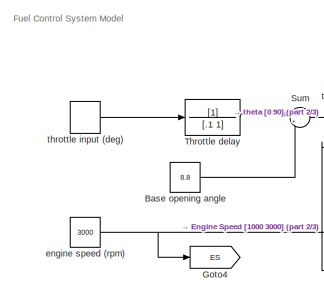
[diagram: root canvas - part 1/3, top left region]
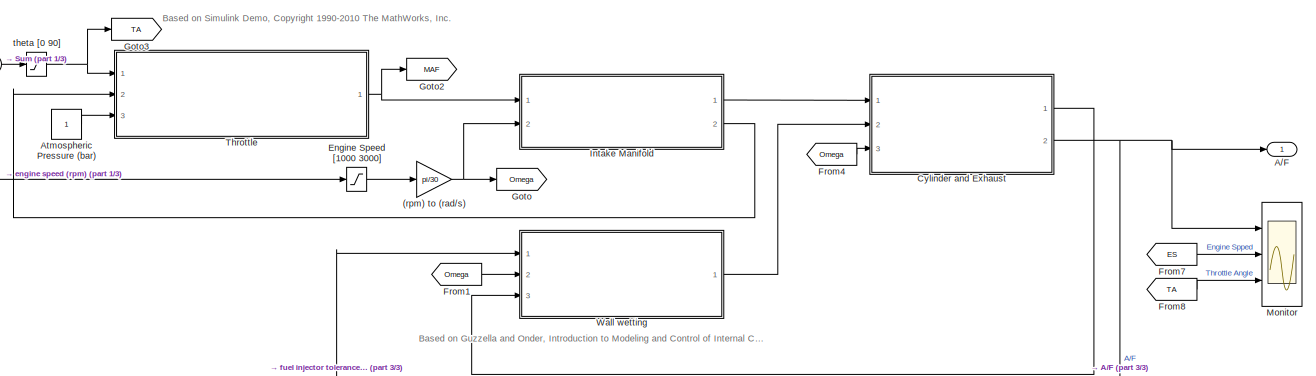
[diagram: root canvas - part 2/3, full width, middle band]
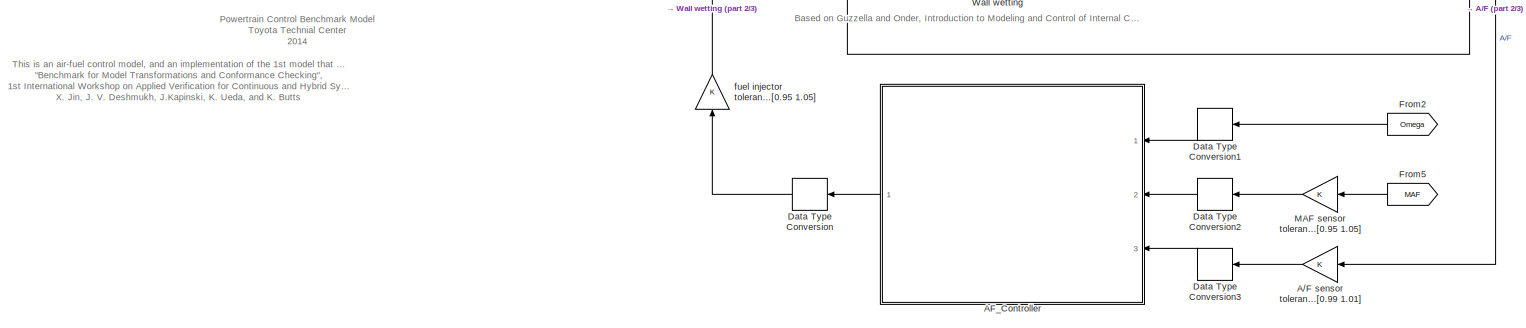
[diagram: root canvas - part 3/3, full width, bottom band]
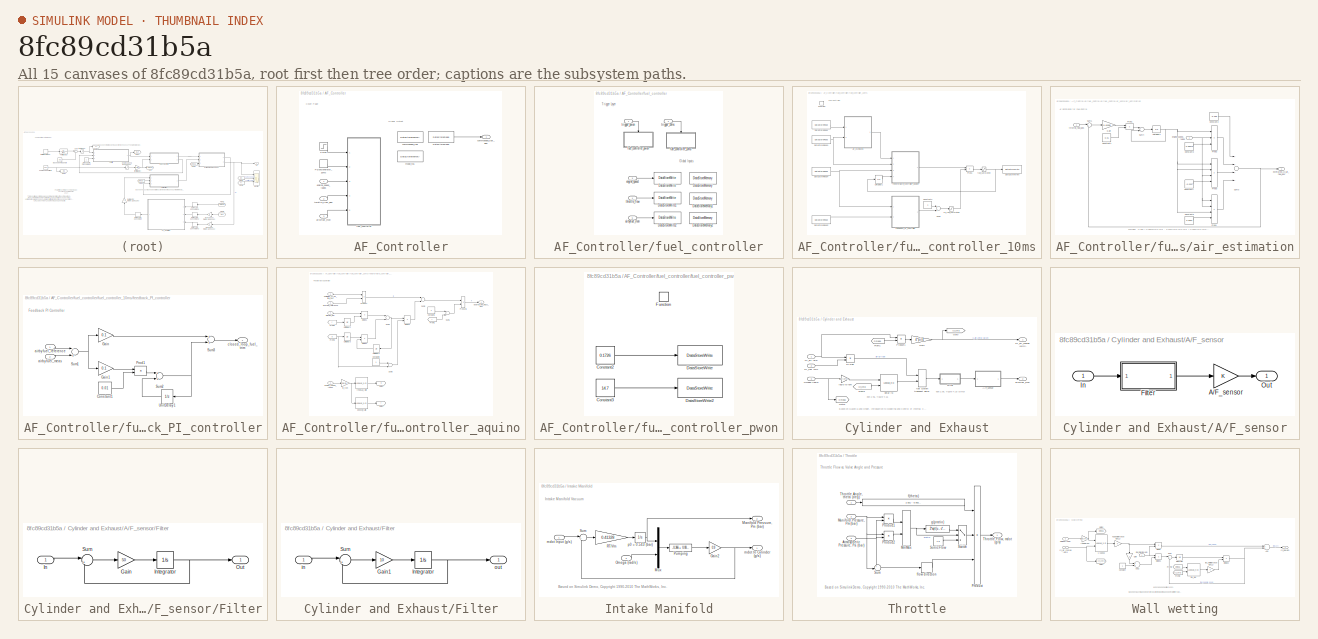
[diagram: thumbnail index - all 15 canvases of the model, root first then tree order]
MODEL slx_8fc89cd31b5a
KIND model
CONFIG AbsTol = 1e-6
CONFIG EnableMultiTasking = off
CONFIG FixedStep = .00005
CONFIG MaxStep = auto
CONFIG MinStep = auto
CONFIG RelTol = 1e-6
CONFIG SampleTimeConstraint = Unconstrained
CONFIG Solver = ode15s
CONFIG SolverName = ode15s
CONFIG StartTime = 0.0
CONFIG StopTime = 50
BLOCK [Gain] (rpm) to (rad//s)
  Gain = pi/30
  OutDataTypeStr = Inherit: Inherit via internal rule
  ParamDataTypeStr = Inherit: Inherit via internal rule
  SaturateOnIntegerOverflow = off
BLOCK [Outport] A//F
  IconDisplay = Port number
BLOCK [Gain] A//F sensor tolerance [0.99 1.01]
  OutDataTypeStr = Inherit: Inherit via internal rule
  ParamDataTypeStr = Inherit: Inherit via internal rule
  SaturateOnIntegerOverflow = off
BLOCK [SubSystem] AF_Controller
  Ports = [3, 1]
  RequestExecContextInheritance = off
  TreatAsAtomicUnit = on
BLOCK [DataStoreRead] AF_Controller/DataStoreRead
  AttributesFormatString = Priority = %<Priority>
  DataStoreName = commanded_fuel
  Ports = [0, 1]
  Priority = 2
BLOCK [DiscretePulseGenerator] AF_Controller/PulseGenerator_10ms
  Period = 0.01
  PhaseDelay = 0.01
  Ports = [0, 1]
  PulseType = Time based
  PulseWidth = 50
BLOCK [Step] AF_Controller/Pwon
  SampleTime = 0
  Time = 0.001
BLOCK [Inport] AF_Controller/airbyfuel_mon
  IconDisplay = Port number
  Port = 3
  SamplingMode = Sample based
  SignalType = real
BLOCK [DataStoreMemory] AF_Controller/commanded_fuel
  AttributesFormatString = commanded_fuel
  DataStoreName = commanded_fuel
  InitialValue = 0.1726
  OutDataTypeStr = single
  ShowAdditionalParam = off
  SignalType = real
BLOCK [Outport] AF_Controller/commanded_fuel_gps
  IconDisplay = Port number
  SamplingMode = Sample based
  SignalType = real
BLOCK [Inport] AF_Controller/engine_speed_radps
  IconDisplay = Port number
  SamplingMode = Sample based
  SignalType = real
BLOCK [SubSystem] AF_Controller/fuel_controller
  AttributesFormatString = Priority = %<Priority>
  Ports = [5]
  Priority = 1
  RequestExecContextInheritance = off
  TreatAsAtomicUnit = on
BLOCK [DataStoreMemory] AF_Controller/fuel_controller/DataStoreMemory
  AttributesFormatString = engine speed
  DataStoreName = engine_speed
  OutDataTypeStr = single
  ShowAdditionalParam = off
  SignalType = real
BLOCK [DataStoreMemory] AF_Controller/fuel_controller/DataStoreMemory1
  AttributesFormatString = throttle flow
  DataStoreName = throttle_flow
  OutDataTypeStr = single
  ShowAdditionalParam = off
  SignalType = real
BLOCK [DataStoreMemory] AF_Controller/fuel_controller/DataStoreMemory2
  AttributesFormatString = lambda_meas
  DataStoreName = airbyfuel_meas
  OutDataTypeStr = single
  ShowAdditionalParam = off
  SignalType = real
BLOCK [DataStoreWrite] AF_Controller/fuel_controller/DataStoreWrite
  AttributesFormatString = Priority = %<Priority>
  DataStoreName = engine_speed
  Ports = [1]
  Priority = 1
BLOCK [DataStoreWrite] AF_Controller/fuel_controller/DataStoreWrite1
  AttributesFormatString = Priority = %<Priority>
  DataStoreName = throttle_flow
  Ports = [1]
  Priority = 1
BLOCK [DataStoreWrite] AF_Controller/fuel_controller/DataStoreWrite2
  AttributesFormatString = Priority = %<Priority>
  DataStoreName = airbyfuel_meas
  Ports = [1]
  Priority = 1
BLOCK [Inport] AF_Controller/fuel_controller/airbyfuel_mon
  IconDisplay = Port number
  Port = 5
  SamplingMode = Sample based
  SignalType = real
BLOCK [Inport] AF_Controller/fuel_controller/engine_speed
  IconDisplay = Port number
  Port = 3
  SamplingMode = Sample based
  SignalType = real
BLOCK [SubSystem] AF_Controller/fuel_controller/fuel_controller_10ms
  AttributesFormatString = Priority = %<Priority>
  Ports = [0, 0, 0, 1]
  Priority = 20
  RequestExecContextInheritance = off
  TreatAsAtomicUnit = on
BLOCK [Constant] AF_Controller/fuel_controller/fuel_controller_10ms/Constant2
  OutDataTypeStr = single
BLOCK [DataStoreRead] AF_Controller/fuel_controller/fuel_controller_10ms/DataStoreRead
  DataStoreName = throttle_flow
  Ports = [0, 1]
BLOCK [DataStoreRead] AF_Controller/fuel_controller/fuel_controller_10ms/DataStoreRead1
  DataStoreName = engine_speed
  Ports = [0, 1]
BLOCK [DataStoreRead] AF_Controller/fuel_controller/fuel_controller_10ms/DataStoreRead2
  DataStoreName = airbyfuel_meas
  Ports = [0, 1]
BLOCK [DataStoreRead] AF_Controller/fuel_controller/fuel_controller_10ms/DataStoreRead4
  DataStoreName = airbyfuel_ref
  Ports = [0, 1]
BLOCK [DataStoreWrite] AF_Controller/fuel_controller/fuel_controller_10ms/DataStoreWrite
  DataStoreName = commanded_fuel
  Ports = [1]
BLOCK [TriggerPort] AF_Controller/fuel_controller/fuel_controller_10ms/Function
  Ports = []
  StatesWhenEnabling = held
  VariantControl = (inherit)
BLOCK [Product] AF_Controller/fuel_controller/fuel_controller_10ms/Prod1
  InputSameDT = off
  OutDataTypeStr = Inherit: Inherit via back propagation
  Ports = [2, 1]
  RndMeth = Simplest
  SaturateOnIntegerOverflow = off
BLOCK [Sum] AF_Controller/fuel_controller/fuel_controller_10ms/Sum1
  OutDataTypeStr = Inherit: Inherit via back propagation
  Ports = [2, 1]
  RndMeth = Simplest
  SaturateOnIntegerOverflow = off
BLOCK [UnitDelay] AF_Controller/fuel_controller/fuel_controller_10ms/UnitDelay1
  AttributesFormatString = Initial Value = 0
  HasFrameUpgradeWarning = on
  SampleTime = -1
  UserDataPersistent = on
BLOCK [SubSystem] AF_Controller/fuel_controller/fuel_controller_10ms/air_estimation
  Ports = [2, 1]
  RequestExecContextInheritance = off
  TreatAsAtomicUnit = on
BLOCK [Constant] AF_Controller/fuel_controller/fuel_controller_10ms/air_estimation/Constant1
  AttributesFormatString = Sample Time (s)
  OutDataTypeStr = single
  SampleTime = -1
  UserDataPersistent = on
  Value = 0.01
BLOCK [Constant] AF_Controller/fuel_controller/fuel_controller_10ms/air_estimation/Constant2
  OutDataTypeStr = single
  SampleTime = -1
  UserDataPersistent = on
  Value = -0.366
BLOCK [Constant] AF_Controller/fuel_controller/fuel_controller_10ms/air_estimation/Constant3
  OutDataTypeStr = single
  SampleTime = -1
  UserDataPersistent = on
  Value = 0.08979
BLOCK [Constant] AF_Controller/fuel_controller/fuel_controller_10ms/air_estimation/Constant4
  OutDataTypeStr = single
  SampleTime = -1
  UserDataPersistent = on
  Value = -0.0337
BLOCK [Constant] AF_Controller/fuel_controller/fuel_controller_10ms/air_estimation/Constant5
  OutDataTypeStr = single
  SampleTime = -1
  UserDataPersistent = on
  Value = 0.0001
BLOCK [Gain] AF_Controller/fuel_controller/fuel_controller_10ms/air_estimation/Gain
  AttributesFormatString = RT/Vm
  Gain = 0.41328
  OutDataTypeStr = Inherit: Inherit via back propagation
  ParamDataTypeStr = single
  RndMeth = Simplest
  UserDataPersistent = on
BLOCK [Product] AF_Controller/fuel_controller/fuel_controller_10ms/air_estimation/Prod1
  InputSameDT = off
  OutDataTypeStr = Inherit: Inherit via back propagation
  Ports = [2, 1]
  RndMeth = Simplest
  SaturateOnIntegerOverflow = off
BLOCK [Product] AF_Controller/fuel_controller/fuel_controller_10ms/air_estimation/Prod2
  InputSameDT = off
  Inputs = 3
  OutDataTypeStr = Inherit: Inherit via back propagation
  Ports = [3, 1]
  RndMeth = Simplest
  SaturateOnIntegerOverflow = off
BLOCK [Product] AF_Controller/fuel_controller/fuel_controller_10ms/air_estimation/Prod3
  InputSameDT = off
  Inputs = 4
  OutDataTypeStr = Inherit: Inherit via back propagation
  Ports = [4, 1]
  RndMeth = Simplest
  SaturateOnIntegerOverflow = off
BLOCK [Product] AF_Controller/fuel_controller/fuel_controller_10ms/air_estimation/Prod4
  InputSameDT = off
  Inputs = 4
  OutDataTypeStr = Inherit: Inherit via back propagation
  Ports = [4, 1]
  RndMeth = Simplest
  SaturateOnIntegerOverflow = off
BLOCK [Sum] AF_Controller/fuel_controller/fuel_controller_10ms/air_estimation/Sum1
  IconShape = round
  Inputs = |+-
  OutDataTypeStr = Inherit: Inherit via back propagation
  Ports = [2, 1]
  RndMeth = Simplest
  SaturateOnIntegerOverflow = off
BLOCK [Sum] AF_Controller/fuel_controller/fuel_controller_10ms/air_estimation/Sum3
  Inputs = ++++
  OutDataTypeStr = Inherit: Inherit via back propagation
  Ports = [4, 1]
  RndMeth = Simplest
  SaturateOnIntegerOverflow = off
BLOCK [Sum] AF_Controller/fuel_controller/fuel_controller_10ms/air_estimation/Sum4
  OutDataTypeStr = Inherit: Inherit via back propagation
  Ports = [2, 1]
  RndMeth = Simplest
  SaturateOnIntegerOverflow = off
BLOCK [UnitDelay] AF_Controller/fuel_controller/fuel_controller_10ms/air_estimation/UnitDelay1
  AttributesFormatString = p0 = %<InitialCondition> (bar)
  HasFrameUpgradeWarning = on
  InitialCondition = 0.825
  SampleTime = -1
  UserDataPersistent = on
BLOCK [Inport] AF_Controller/fuel_controller/fuel_controller_10ms/air_estimation/engine_speed_radps
  IconDisplay = Port number
  Port = 2
  SamplingMode = Sample based
  SignalType = real
BLOCK [Outport] AF_Controller/fuel_controller/fuel_controller_10ms/air_estimation/estimated_cyl_air_flow_gps
  IconDisplay = Port number
  SamplingMode = Sample based
  SignalType = real
BLOCK [Inport] AF_Controller/fuel_controller/fuel_controller_10ms/air_estimation/throttle_flow_gps
  IconDisplay = Port number
  SamplingMode = Sample based
  SignalType = real
BLOCK [Saturate] AF_Controller/fuel_controller/fuel_controller_10ms/fb_fuel_saturation
  AttributesFormatString = y >= 0
  InputPortMap = u0
  LowerLimit = 0
  Ports = [1, 1]
  RndMeth = Round
  UpperLimit = inf
BLOCK [SubSystem] AF_Controller/fuel_controller/fuel_controller_10ms/feedback_PI_controller
  Ports = [2, 1]
  RequestExecContextInheritance = off
  TreatAsAtomicUnit = on
BLOCK [Constant] AF_Controller/fuel_controller/fuel_controller_10ms/feedback_PI_controller/Constant1
  AttributesFormatString = Sample Time [s]
  OutDataTypeStr = single
  SampleTime = -1
  UserDataPersistent = on
  Value = 0.01
BLOCK [Gain] AF_Controller/fuel_controller/fuel_controller_10ms/feedback_PI_controller/Gain
  AttributesFormatString = Proportional Gain
  Gain = 0.1
  OutDataTypeStr = Inherit: Inherit via back propagation
  ParamDataTypeStr = single
  RndMeth = Simplest
  UserDataPersistent = on
BLOCK [Gain] AF_Controller/fuel_controller/fuel_controller_10ms/feedback_PI_controller/Gain1
  AttributesFormatString = Integral Gain
  Gain = 0.1
  OutDataTypeStr = Inherit: Inherit via back propagation
  ParamDataTypeStr = single
  RndMeth = Simplest
  UserDataPersistent = on
BLOCK [Product] AF_Controller/fuel_controller/fuel_controller_10ms/feedback_PI_controller/Prod1
  InputSameDT = off
  OutDataTypeStr = Inherit: Inherit via back propagation
  Ports = [2, 1]
  RndMeth = Simplest
  SaturateOnIntegerOverflow = off
BLOCK [Sum] AF_Controller/fuel_controller/fuel_controller_10ms/feedback_PI_controller/Sum1
  Inputs = -+
  OutDataTypeStr = Inherit: Inherit via back propagation
  Ports = [2, 1]
  RndMeth = Simplest
  SaturateOnIntegerOverflow = off
BLOCK [Sum] AF_Controller/fuel_controller/fuel_controller_10ms/feedback_PI_controller/Sum2
  OutDataTypeStr = Inherit: Inherit via back propagation
  Ports = [2, 1]
  RndMeth = Simplest
  SaturateOnIntegerOverflow = off
BLOCK [Sum] AF_Controller/fuel_controller/fuel_controller_10ms/feedback_PI_controller/Sum3
  OutDataTypeStr = Inherit: Inherit via back propagation
  Ports = [2, 1]
  RndMeth = Simplest
  SaturateOnIntegerOverflow = off
BLOCK [UnitDelay] AF_Controller/fuel_controller/fuel_controller_10ms/feedback_PI_controller/UnitDelay1
  AttributesFormatString = Initial Value = 0
  HasFrameUpgradeWarning = on
  SampleTime = -1
  UserDataPersistent = on
BLOCK [Inport] AF_Controller/fuel_controller/fuel_controller_10ms/feedback_PI_controller/airbyfuel_meas
  IconDisplay = Port number
  Port = 2
  SamplingMode = Sample based
  SignalType = real
BLOCK [Inport] AF_Controller/fuel_controller/fuel_controller_10ms/feedback_PI_controller/airbyfuel_reference
  IconDisplay = Port number
  SamplingMode = Sample based
  SignalType = real
BLOCK [Outport] AF_Controller/fuel_controller/fuel_controller_10ms/feedback_PI_controller/closed_loop_fuel_trim
  IconDisplay = Port number
  SamplingMode = Sample based
  SignalType = real
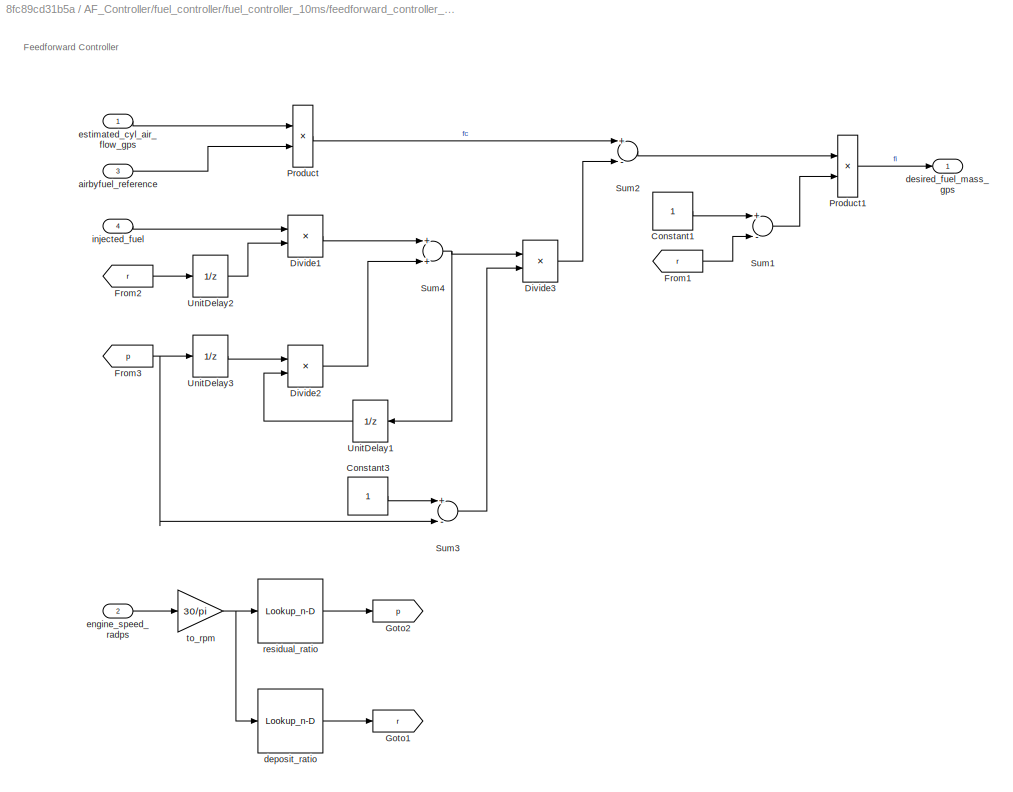
BLOCK [SubSystem] AF_Controller/fuel_controller/fuel_controller_10ms/feedforward_controller_aquino
  Ports = [4, 1]
  RequestExecContextInheritance = off
  TreatAsAtomicUnit = on
BLOCK [Constant] AF_Controller/fuel_controller/fuel_controller_10ms/feedforward_controller_aquino/Constant1
  OutDataTypeStr = single
  SampleTime = -1
  UserDataPersistent = on
BLOCK [Constant] AF_Controller/fuel_controller/fuel_controller_10ms/feedforward_controller_aquino/Constant3
  OutDataTypeStr = single
  SampleTime = -1
  UserDataPersistent = on
BLOCK [Product] AF_Controller/fuel_controller/fuel_controller_10ms/feedforward_controller_aquino/Divide1
  InputSameDT = off
  Inputs = **
  OutDataTypeStr = Inherit: Inherit via internal rule
  Ports = [2, 1]
  RndMeth = Floor
  SaturateOnIntegerOverflow = off
BLOCK [Product] AF_Controller/fuel_controller/fuel_controller_10ms/feedforward_controller_aquino/Divide2
  InputSameDT = off
  Inputs = **
  OutDataTypeStr = Inherit: Inherit via internal rule
  Ports = [2, 1]
  RndMeth = Floor
  SaturateOnIntegerOverflow = off
BLOCK [Product] AF_Controller/fuel_controller/fuel_controller_10ms/feedforward_controller_aquino/Divide3
  InputSameDT = off
  Inputs = **
  OutDataTypeStr = Inherit: Inherit via internal rule
  Ports = [2, 1]
  RndMeth = Floor
  SaturateOnIntegerOverflow = off
BLOCK [From] AF_Controller/fuel_controller/fuel_controller_10ms/feedforward_controller_aquino/From1
  GotoTag = r
BLOCK [From] AF_Controller/fuel_controller/fuel_controller_10ms/feedforward_controller_aquino/From2
  GotoTag = r
BLOCK [From] AF_Controller/fuel_controller/fuel_controller_10ms/feedforward_controller_aquino/From3
  GotoTag = p
BLOCK [Goto] AF_Controller/fuel_controller/fuel_controller_10ms/feedforward_controller_aquino/Goto1
  GotoTag = r
BLOCK [Goto] AF_Controller/fuel_controller/fuel_controller_10ms/feedforward_controller_aquino/Goto2
  GotoTag = p
BLOCK [Product] AF_Controller/fuel_controller/fuel_controller_10ms/feedforward_controller_aquino/Product
  InputSameDT = off
  Inputs = */
  Ports = [2, 1]
  RndMeth = Simplest
BLOCK [Product] AF_Controller/fuel_controller/fuel_controller_10ms/feedforward_controller_aquino/Product1
  InputSameDT = off
  Inputs = */
  Ports = [2, 1]
  RndMeth = Simplest
BLOCK [Sum] AF_Controller/fuel_controller/fuel_controller_10ms/feedforward_controller_aquino/Sum1
  Inputs = +-
  OutDataTypeStr = Inherit: Inherit via back propagation
  Ports = [2, 1]
  RndMeth = Simplest
  SaturateOnIntegerOverflow = off
BLOCK [Sum] AF_Controller/fuel_controller/fuel_controller_10ms/feedforward_controller_aquino/Sum2
  Inputs = +-
  OutDataTypeStr = Inherit: Inherit via back propagation
  Ports = [2, 1]
  RndMeth = Simplest
  SaturateOnIntegerOverflow = off
BLOCK [Sum] AF_Controller/fuel_controller/fuel_controller_10ms/feedforward_controller_aquino/Sum3
  Inputs = +-
  OutDataTypeStr = Inherit: Inherit via back propagation
  Ports = [2, 1]
  RndMeth = Simplest
  SaturateOnIntegerOverflow = off
BLOCK [Sum] AF_Controller/fuel_controller/fuel_controller_10ms/feedforward_controller_aquino/Sum4
  OutDataTypeStr = Inherit: Inherit via back propagation
  Ports = [2, 1]
  RndMeth = Simplest
  SaturateOnIntegerOverflow = off
BLOCK [UnitDelay] AF_Controller/fuel_controller/fuel_controller_10ms/feedforward_controller_aquino/UnitDelay1
  AttributesFormatString = Initial Value = 0
  HasFrameUpgradeWarning = on
  SampleTime = -1
  UserDataPersistent = on
BLOCK [UnitDelay] AF_Controller/fuel_controller/fuel_controller_10ms/feedforward_controller_aquino/UnitDelay2
  AttributesFormatString = Initial Value = 0
  HasFrameUpgradeWarning = on
  SampleTime = -1
  UserDataPersistent = on
BLOCK [UnitDelay] AF_Controller/fuel_controller/fuel_controller_10ms/feedforward_controller_aquino/UnitDelay3
  AttributesFormatString = Initial Value = 0
  HasFrameUpgradeWarning = on
  SampleTime = -1
  UserDataPersistent = on
BLOCK [Inport] AF_Controller/fuel_controller/fuel_controller_10ms/feedforward_controller_aquino/airbyfuel_reference
  IconDisplay = Port number
  Port = 3
  SamplingMode = Sample based
  SignalType = real
BLOCK [Lookup_n-D] AF_Controller/fuel_controller/fuel_controller_10ms/feedforward_controller_aquino/deposit_ratio
  BreakpointsForDimension1 = [1000, 2000, 3000]
  ExtrapMethod = Clip
  InternalRulePriority = Speed
  NumberOfTableDimensions = 1
  Ports = [1, 1]
  RndMeth = Simplest
  Table = [0.4, 0.65, 0.5]
BLOCK [Outport] AF_Controller/fuel_controller/fuel_controller_10ms/feedforward_controller_aquino/desired_fuel_mass_gps
  IconDisplay = Port number
  SamplingMode = Sample based
  SignalType = real
BLOCK [Inport] AF_Controller/fuel_controller/fuel_controller_10ms/feedforward_controller_aquino/engine_speed_radps
  IconDisplay = Port number
  Port = 2
  SamplingMode = Sample based
  SignalType = real
BLOCK [Inport] AF_Controller/fuel_controller/fuel_controller_10ms/feedforward_controller_aquino/estimated_cyl_air_flow_gps
  IconDisplay = Port number
  SamplingMode = Sample based
  SignalType = real
BLOCK [Inport] AF_Controller/fuel_controller/fuel_controller_10ms/feedforward_controller_aquino/injected_fuel
  IconDisplay = Port number
  Port = 4
  SamplingMode = Sample based
  SignalType = real
BLOCK [Lookup_n-D] AF_Controller/fuel_controller/fuel_controller_10ms/feedforward_controller_aquino/residual_ratio
  BreakpointsForDimension1 = [1000, 2000, 3000]
  ExtrapMethod = Clip
  InternalRulePriority = Speed
  NumberOfTableDimensions = 1
  Ports = [1, 1]
  RndMeth = Simplest
  Table = [0.5, 0.95, 0.9]
BLOCK [Gain] AF_Controller/fuel_controller/fuel_controller_10ms/feedforward_controller_aquino/to_rpm
  Gain = 30/pi
  OutDataTypeStr = Inherit: Inherit via internal rule
  ParamDataTypeStr = Inherit: Inherit via internal rule
  SaturateOnIntegerOverflow = off
BLOCK [Saturate] AF_Controller/fuel_controller/fuel_controller_10ms/fuel_saturation
  AttributesFormatString = 0.1 <=\ncommanded_fuel\n<= 5.0
  InputPortMap = u0
  LowerLimit = 0.1
  Ports = [1, 1]
  RndMeth = Round
  UpperLimit = 5.0
BLOCK [SubSystem] AF_Controller/fuel_controller/fuel_controller_pwon
  AttributesFormatString = Priority = %<Priority>
  Ports = [0, 0, 0, 1]
  Priority = 10
  RequestExecContextInheritance = off
  TreatAsAtomicUnit = on
BLOCK [Constant] AF_Controller/fuel_controller/fuel_controller_pwon/Constant2
  OutDataTypeStr = single
  SampleTime = -1
  UserDataPersistent = on
  Value = 0.1726
BLOCK [Constant] AF_Controller/fuel_controller/fuel_controller_pwon/Constant3
  OutDataTypeStr = single
  SampleTime = -1
  UserDataPersistent = on
  Value = 14.7
BLOCK [DataStoreWrite] AF_Controller/fuel_controller/fuel_controller_pwon/DataStoreWrite
  DataStoreName = commanded_fuel
  Ports = [1]
BLOCK [DataStoreWrite] AF_Controller/fuel_controller/fuel_controller_pwon/DataStoreWrite2
  DataStoreName = airbyfuel_ref
  Ports = [1]
BLOCK [TriggerPort] AF_Controller/fuel_controller/fuel_controller_pwon/Function
  Ports = []
  StatesWhenEnabling = held
  VariantControl = (inherit)
BLOCK [Inport] AF_Controller/fuel_controller/throttle_flow
  IconDisplay = Port number
  Port = 4
  SamplingMode = Sample based
  SignalType = real
BLOCK [Inport] AF_Controller/fuel_controller/trigger_10ms
  IconDisplay = Port number
  Port = 2
  SamplingMode = Sample based
  SignalType = real
BLOCK [Inport] AF_Controller/fuel_controller/trigger_pwon
  IconDisplay = Port number
  SamplingMode = Sample based
  SignalType = real
BLOCK [DataStoreMemory] AF_Controller/mode_fb1
  AttributesFormatString = airbyfuel_reference
  DataStoreName = airbyfuel_ref
  InitialValue = 14.7
  OutDataTypeStr = single
  ShowAdditionalParam = off
  SignalType = real
BLOCK [Inport] AF_Controller/throttle_flow_gps
  IconDisplay = Port number
  Port = 2
  SamplingMode = Sample based
  SignalType = real
BLOCK [Constant] Atmospheric Pressure (bar)
BLOCK [Constant] Base opening angle
  Value = 8.8
BLOCK [SubSystem] Cylinder and Exhaust
  Ports = [3, 2]
  RequestExecContextInheritance = off
BLOCK [SubSystem] Cylinder and Exhaust/A//F_sensor
  Ports = [1, 1]
  RequestExecContextInheritance = off
BLOCK [Gain] Cylinder and Exhaust/A//F_sensor/A//F_sensor
  OutDataTypeStr = double
  ParamDataTypeStr = Inherit: Inherit via internal rule
  SaturateOnIntegerOverflow = off
BLOCK [SubSystem] Cylinder and Exhaust/A//F_sensor/Filter
  Ports = [1, 1]
  RequestExecContextInheritance = off
BLOCK [Gain] Cylinder and Exhaust/A//F_sensor/Filter/Gain
  Gain = 50
  OutDataTypeStr = Inherit: Inherit via internal rule
  ParamDataTypeStr = Inherit: Inherit via internal rule
  SaturateOnIntegerOverflow = off
BLOCK [Inport] Cylinder and Exhaust/A//F_sensor/Filter/In
  IconDisplay = Port number
BLOCK [Integrator] Cylinder and Exhaust/A//F_sensor/Filter/Integrator
  InitialCondition = 14.7
  Ports = [1, 1]
BLOCK [Outport] Cylinder and Exhaust/A//F_sensor/Filter/Out
  IconDisplay = Port number
BLOCK [Sum] Cylinder and Exhaust/A//F_sensor/Filter/Sum
  IconShape = round
  InputSameDT = off
  Inputs = |+-
  OutDataTypeStr = Inherit: Inherit via internal rule
  Ports = [2, 1]
  SaturateOnIntegerOverflow = off
BLOCK [Inport] Cylinder and Exhaust/A//F_sensor/In
  IconDisplay = Port number
BLOCK [Outport] Cylinder and Exhaust/A//F_sensor/Out
  IconDisplay = Port number
BLOCK [Product] Cylinder and Exhaust/Divide
  InputSameDT = off
  Inputs = */
  OutDataTypeStr = Inherit: Inherit via internal rule
  Ports = [2, 1]
  RndMeth = Floor
  SaturateOnIntegerOverflow = off
BLOCK [SubSystem] Cylinder and Exhaust/Filter
  Ports = [1, 1]
  RequestExecContextInheritance = off
BLOCK [Gain] Cylinder and Exhaust/Filter/Gain1
  Gain = 10
  OutDataTypeStr = Inherit: Inherit via internal rule
  ParamDataTypeStr = Inherit: Inherit via internal rule
  SaturateOnIntegerOverflow = off
BLOCK [Integrator] Cylinder and Exhaust/Filter/Integrator
  InitialCondition = 14.7
  Ports = [1, 1]
BLOCK [Sum] Cylinder and Exhaust/Filter/Sum
  IconShape = round
  InputSameDT = off
  Inputs = |+-
  OutDataTypeStr = Inherit: Inherit via internal rule
  Ports = [2, 1]
  SaturateOnIntegerOverflow = off
BLOCK [Inport] Cylinder and Exhaust/Filter/in
  IconDisplay = Port number
BLOCK [Outport] Cylinder and Exhaust/Filter/out
  IconDisplay = Port number
BLOCK [From] Cylinder and Exhaust/From1
  GotoTag = Omega
BLOCK [From] Cylinder and Exhaust/From3
  GotoTag = cyl_chrg
BLOCK [Gain] Cylinder and Exhaust/Gain
  Gain = 4*pi/4
  OutDataTypeStr = Inherit: Inherit via internal rule
  ParamDataTypeStr = Inherit: Inherit via internal rule
  SaturateOnIntegerOverflow = off
BLOCK [Goto] Cylinder and Exhaust/Goto
  GotoTag = cyl_chrg
BLOCK [Goto] Cylinder and Exhaust/Goto1
  GotoTag = Omega
BLOCK [Inport] Cylinder and Exhaust/Omega (rad//s)
  IconDisplay = Port number
  Port = 3
BLOCK [Product] Cylinder and Exhaust/Product1
  InputSameDT = off
  Inputs = */
  OutDataTypeStr = Inherit: Inherit via internal rule
  Ports = [2, 1]
  SaturateOnIntegerOverflow = off
BLOCK [Outport] Cylinder and Exhaust/airbyfuel_mon 
  IconDisplay = Port number
  Port = 2
BLOCK [Inport] Cylinder and Exhaust/cyl_air (g//s)
  IconDisplay = Port number
BLOCK [Outport] Cylinder and Exhaust/cyl_air_charge (g//cyl)
  IconDisplay = Port number
BLOCK [Inport] Cylinder and Exhaust/cyl_fuel (g//s)
  IconDisplay = Port number
  Port = 2
BLOCK [Lookup_n-D] Cylinder and Exhaust/delay (s)
  BreakpointsForDimension1 = [800,1000,1500,2000,3000]
  BreakpointsForDimension2 = [0.05,0.15,0.2,0.25]
  Ports = [2, 1]
  RndMeth = Simplest
  Table = reshape([0.8,0.6,0.4,0.3,0.2,0.4,0.3,0.2,0.2,0.2,0.3,0.25,0.2,0.2,0.2,0.25,0.2,0.2,0.2,0.2],5,4)
  UseLastTableValue = on
BLOCK [VariableTransportDelay] Cylinder and Exhaust/fuel system transport delay
  InitialOutput = 14.7
  MaximumDelay = 10
  MaximumPoints = 20480
  Ports = [2, 1]
  VariableDelayType = Variable transport delay
BLOCK [Gain] Cylinder and Exhaust/rad//s to rpm
  Gain = 60/(2*pi)
  OutDataTypeStr = Inherit: Inherit via internal rule
  ParamDataTypeStr = Inherit: Inherit via internal rule
  SaturateOnIntegerOverflow = off
BLOCK [DataTypeConversion] Data Type Conversion
  OutDataTypeStr = double
  RndMeth = Floor
  SaturateOnIntegerOverflow = off
BLOCK [DataTypeConversion] Data Type Conversion1
  OutDataTypeStr = single
  RndMeth = Floor
  SaturateOnIntegerOverflow = off
BLOCK [DataTypeConversion] Data Type Conversion2
  OutDataTypeStr = single
  RndMeth = Floor
  SaturateOnIntegerOverflow = off
BLOCK [DataTypeConversion] Data Type Conversion3
  OutDataTypeStr = single
  RndMeth = Floor
  SaturateOnIntegerOverflow = off
BLOCK [Saturate] Engine Speed [1000 3000]
  InputPortMap = u0
  LowerLimit = 1000
  Ports = [1, 1]
  UpperLimit = 3000
BLOCK [From] From1
  GotoTag = Omega
BLOCK [From] From2
  GotoTag = Omega
BLOCK [From] From4
  GotoTag = Omega
BLOCK [From] From5
  GotoTag = MAF
BLOCK [From] From7
  GotoTag = ES
BLOCK [From] From8
  GotoTag = TA
BLOCK [Goto] Goto
  GotoTag = Omega
BLOCK [Goto] Goto2
  GotoTag = MAF
BLOCK [Goto] Goto3
  GotoTag = TA
BLOCK [Goto] Goto4
  GotoTag = ES
BLOCK [SubSystem] Intake Manifold
  Ports = [2, 2]
  RequestExecContextInheritance = off
BLOCK [Gain] Intake Manifold/Gain2
  AttributesFormatString = pumping tolerance [0.9 1.1]
  Gain = 0.9
  OutDataTypeStr = Inherit: Inherit via back propagation
  ParamDataTypeStr = single
  RndMeth = Simplest
  UserDataPersistent = on
BLOCK [Outport] Intake Manifold/Manifold Pressure, Pm (bar)
  IconDisplay = Port number
  InitialOutput = 0
  Port = 2
BLOCK [Mux] Intake Manifold/Mux
  DisplayOption = bar
  Inputs = 2
  Ports = [2, 1]
BLOCK [Inport] Intake Manifold/Omega (rad//s)
  IconDisplay = Port number
  Port = 2
BLOCK [Fcn] Intake Manifold/Pumping
  Expr = -0.366 + 0.08979*u[1]*u[2] - 0.0337*u[2]*u[1]*u[1] + 0.0001*u[1]*u[2]*u[2]
BLOCK [Gain] Intake Manifold/RT//Vm
  Gain = 0.41328
BLOCK [Sum] Intake Manifold/Sum
  IconShape = round
  Inputs = |+-
  Ports = [2, 1]
BLOCK [Inport] Intake Manifold/mdot Input (g//s)
  IconDisplay = Port number
BLOCK [Outport] Intake Manifold/mdot to Cylinder (g//s)
  IconDisplay = Port number
  InitialOutput = 0
BLOCK [Integrator] Intake Manifold/p0 = 0.543 (bar)
  InitialCondition = 0.7705
  Ports = [1, 1]
BLOCK [Gain] MAF sensor tolerance [0.95 1.05]
  OutDataTypeStr = Inherit: Inherit via internal rule
  ParamDataTypeStr = Inherit: Inherit via internal rule
  SaturateOnIntegerOverflow = off
BLOCK [Scope] Monitor
  Floating = off
  NumInputPorts = 3
  Ports = [3]
  ScopeSpecificationString = C++SS(StrPVP('Location','[882, 814, 2107, 1438]'),StrPVP('Open','off'),StrPVP('ZoomMode','xonly'),MxPVP('AxesTitles',54,'struct(''axes1'',''%<SignalLabel>'',''axes2'',''%<SignalLabel>'',''axes3'',''%<SignalLabel>'')'),MxPVP('ScopeGraphics',57,'struct(''FigureColor'',''[0.501960784313725 0.501960784313725 0.501960784313725]'',''AxesColor'',''[0 0 0]'',''AxesTickColor'',''[1 1 1]'',''LineColors'',''...<+453ch>
BLOCK [Sum] Sum
  IconShape = round
  InputSameDT = off
  Inputs = |++
  OutDataTypeStr = Inherit: Inherit via internal rule
  Ports = [2, 1]
  SaturateOnIntegerOverflow = off
BLOCK [SubSystem] Throttle
  Ports = [3, 1]
  RequestExecContextInheritance = off
BLOCK [TransferFcn] Throttle delay
  Denominator = [.1 1]
BLOCK [Inport] Throttle/Atmospheric Pressure, Pa (bar) 
  IconDisplay = Port number
  Port = 3
BLOCK [Inport] Throttle/Manifold Pressure, Pm (bar)
  IconDisplay = Port number
  Port = 2
BLOCK [MinMax] Throttle/MinMax
  Inputs = 2
  Ports = [2, 1]
BLOCK [Product] Throttle/Product
  Inputs = 3
  Ports = [3, 1]
BLOCK [Product] Throttle/Product1
  Inputs = */
  Ports = [2, 1]
BLOCK [Product] Throttle/Product2
  Inputs = /*
  Ports = [2, 1]
BLOCK [Constant] Throttle/Sonic Flow 
  Value = 1.0
BLOCK [Sum] Throttle/Sum
  IconShape = round
  Inputs = +-|
  Ports = [2, 1]
BLOCK [Switch] Throttle/Switch
  Threshold = 0.5
BLOCK [Inport] Throttle/Throttle Angle, theta (deg)
  IconDisplay = Port number
BLOCK [Outport] Throttle/Throttle Flow, mdot (g//s)
  IconDisplay = Port number
  InitialOutput = 0
BLOCK [Fcn] Throttle/f(theta)
  Expr = 2.821 - 0.05231*u + 0.10299*u*u - 0.00063*u*u*u
BLOCK [Signum] Throttle/flow direction
BLOCK [Fcn] Throttle/g(pratio)
  Expr = 2*sqrt(u - u*u)
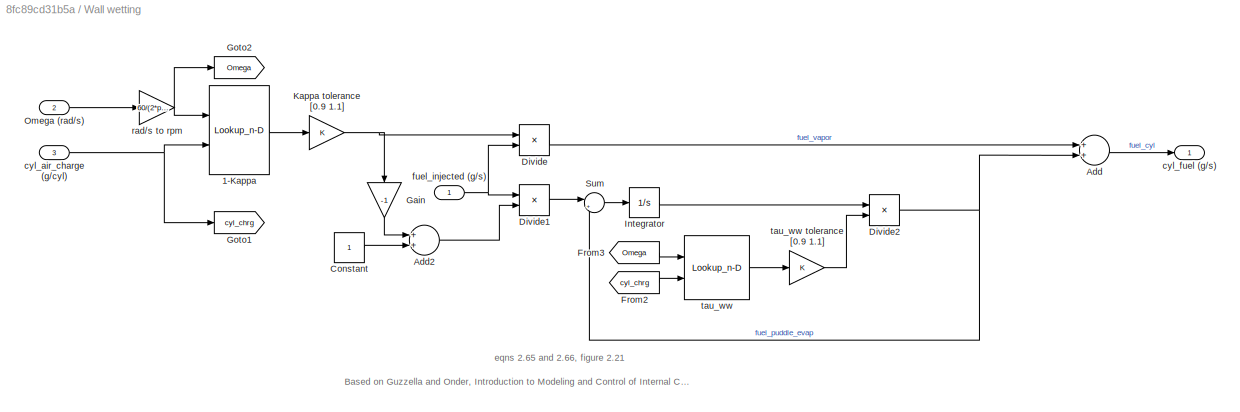
BLOCK [SubSystem] Wall wetting
  Ports = [3, 1]
  RequestExecContextInheritance = off
BLOCK [Lookup_n-D] Wall wetting/1-Kappa
  BreakpointsForDimension1 = [1000,1500,2000,2500,3000]
  BreakpointsForDimension2 = [.1,.2,.3,.4]
  Ports = [2, 1]
  RndMeth = Simplest
  Table = reshape([0.8,.7,.7,.8,.9,.7,.66,.65,.73,.85,.66,.66,.63,.66,.8,.6,.6,.6,.6,.7],5,4)
  UseLastTableValue = on
BLOCK [Sum] Wall wetting/Add
  InputSameDT = off
  OutDataTypeStr = Inherit: Inherit via internal rule
  Ports = [2, 1]
  SaturateOnIntegerOverflow = off
BLOCK [Sum] Wall wetting/Add2
  InputSameDT = off
  OutDataTypeStr = Inherit: Inherit via internal rule
  Ports = [2, 1]
  SaturateOnIntegerOverflow = off
BLOCK [Constant] Wall wetting/Constant
BLOCK [Product] Wall wetting/Divide
  InputSameDT = off
  Inputs = **
  OutDataTypeStr = Inherit: Inherit via internal rule
  Ports = [2, 1]
  RndMeth = Floor
  SaturateOnIntegerOverflow = off
BLOCK [Product] Wall wetting/Divide1
  InputSameDT = off
  Inputs = **
  OutDataTypeStr = Inherit: Inherit via internal rule
  Ports = [2, 1]
  RndMeth = Floor
  SaturateOnIntegerOverflow = off
BLOCK [Product] Wall wetting/Divide2
  InputSameDT = off
  Inputs = */
  OutDataTypeStr = Inherit: Inherit via internal rule
  Ports = [2, 1]
  RndMeth = Floor
  SaturateOnIntegerOverflow = off
BLOCK [From] Wall wetting/From2
  GotoTag = cyl_chrg
BLOCK [From] Wall wetting/From3
  GotoTag = Omega
BLOCK [Gain] Wall wetting/Gain
  Gain = -1
  OutDataTypeStr = Inherit: Inherit via internal rule
  ParamDataTypeStr = Inherit: Inherit via internal rule
  SaturateOnIntegerOverflow = off
BLOCK [Goto] Wall wetting/Goto1
  GotoTag = cyl_chrg
BLOCK [Goto] Wall wetting/Goto2
  GotoTag = Omega
BLOCK [Integrator] Wall wetting/Integrator
  InitialCondition = .0112
  Ports = [1, 1]
BLOCK [Gain] Wall wetting/Kappa tolerance [0.9 1.1]
  OutDataTypeStr = Inherit: Inherit via internal rule
  ParamDataTypeStr = Inherit: Inherit via internal rule
  SaturateOnIntegerOverflow = off
BLOCK [Inport] Wall wetting/Omega (rad//s)
  IconDisplay = Port number
  Port = 2
BLOCK [Sum] Wall wetting/Sum
  IconShape = round
  InputSameDT = off
  Inputs = |+-
  OutDataTypeStr = Inherit: Inherit via internal rule
  Ports = [2, 1]
  SaturateOnIntegerOverflow = off
BLOCK [Inport] Wall wetting/cyl_air_charge (g//cyl)
  IconDisplay = Port number
  Port = 3
BLOCK [Outport] Wall wetting/cyl_fuel (g//s)
  IconDisplay = Port number
BLOCK [Inport] Wall wetting/fuel_injected (g//s)
  IconDisplay = Port number
BLOCK [Gain] Wall wetting/rad//s to rpm
  Gain = 60/(2*pi)
  OutDataTypeStr = Inherit: Inherit via internal rule
  ParamDataTypeStr = Inherit: Inherit via internal rule
  SaturateOnIntegerOverflow = off
BLOCK [Lookup_n-D] Wall wetting/tau_ww
  BreakpointsForDimension1 = [1000,1500,2000,2500,3000]
  BreakpointsForDimension2 = [0.1,0.2,0.3,0.4]
  Ports = [2, 1]
  RndMeth = Simplest
  Table = reshape([.4,.3,.35,.3,.2,.22,.22,.4,.35,.5,.20,.22,.5,.4,.35,.35,.3,.45,.5,.4],5,4)
  UseLastTableValue = on
BLOCK [Gain] Wall wetting/tau_ww tolerance [0.9 1.1]
  OutDataTypeStr = Inherit: Inherit via internal rule
  ParamDataTypeStr = Inherit: Inherit via internal rule
  SaturateOnIntegerOverflow = off
BLOCK [Constant] engine speed (rpm)
  AttributesFormatString = %<Description>
  Description = [1000, 3000]
  Value = 3000
BLOCK [Gain] fuel injector tolerance [0.95 1.05]
  OutDataTypeStr = Inherit: Inherit via internal rule
  ParamDataTypeStr = Inherit: Inherit via internal rule
  SaturateOnIntegerOverflow = off
BLOCK [Saturate] theta [0 90]
  InputPortMap = u0
  LowerLimit = 0
  Ports = [1, 1]
  UpperLimit = 90
BLOCK [DiscretePulseGenerator] throttle input (deg)
  Amplitude = 81.2
  AttributesFormatString = %<Description>
  Description = [0, 81.2]
  Period = 10
  PhaseDelay = 3
  Ports = [0, 1]
  PulseType = Time based
  PulseWidth = 50
ANNOTATION (root): Based on Guzzella and Onder, Introduction to Modeling and Control of Internal Combustion Engine Systems
ANNOTATION (root): Based on Simulink Demo, <copyright redacted>
ANNOTATION (root): Fuel Control System Model
ANNOTATION (root): Powertrain Control Benchmark Model Toyota Technial Center 2014
ANNOTATION (root): This is an air-fuel control model, and an implementation of the 1st model that appears in "Benchmark for Model Transformations and Conformance Checking", 1st International Workshop on Applied Verification for Continuous and Hybrid Systems 2014, X. Jin, J. V. Deshmukh, J.Kapinski, K. Ueda, and K. Butts
ANNOTATION AF_Controller: Cover Page
ANNOTATION AF_Controller: Global Output
ANNOTATION AF_Controller/fuel_controller: Global Inputs
ANNOTATION AF_Controller/fuel_controller: Trigger Layer
ANNOTATION AF_Controller/fuel_controller/fuel_controller_10ms: Fuel Controller
ANNOTATION AF_Controller/fuel_controller/fuel_controller_10ms/air_estimation: Air Estimation for Fuel Control
ANNOTATION AF_Controller/fuel_controller/fuel_controller_10ms/air_estimation: Pumping: -0.366 + 0.08979*u[1]*u[2] - 0.0337*u[2]*u[1]*u[1] + 0.0001*u[1]*u[2]*u[2]
ANNOTATION AF_Controller/fuel_controller/fuel_controller_10ms/feedback_PI_controller: Feedback PI Controller
ANNOTATION AF_Controller/fuel_controller/fuel_controller_10ms/feedforward_controller_aquino: Feedforward Controller
ANNOTATION Cylinder and Exhaust: Based on Guzzella and Onder, Introduction to Modeling and Control of Internal Combustion Engine Systems
ANNOTATION Cylinder and Exhaust: eqn 2.96, figure 4.16
ANNOTATION Cylinder and Exhaust: eqn 2.96, figure 4.16 (simp)
ANNOTATION Intake Manifold: Based on Simulink Demo, <copyright redacted>
ANNOTATION Intake Manifold: Intake Manifold Vacuum
ANNOTATION Throttle: Based on Simulink Demo, <copyright redacted>
ANNOTATION Throttle: Throttle Flow vs. Valve Angle and Pressure
ANNOTATION Wall wetting: Based on Guzzella and Onder, Introduction to Modeling and Control of Internal Combustion Engine Systems
ANNOTATION Wall wetting: eqns 2.65 and 2.66, figure 2.21
NET (rpm) to (rad//s):1 -> Goto:1, Intake Manifold:2
LINE A//F sensor tolerance [0.99 1.01]:1 -> Data Type Conversion3:1
LINE AF_Controller/DataStoreRead:1 -> AF_Controller/commanded_fuel_gps:1
LINE AF_Controller/PulseGenerator_10ms:1 -> AF_Controller/fuel_controller:2
LINE AF_Controller/Pwon:1 -> AF_Controller/fuel_controller:1
LINE AF_Controller/airbyfuel_mon:1 -> AF_Controller/fuel_controller:5
LINE AF_Controller/engine_speed_radps:1 -> AF_Controller/fuel_controller:3
LINE AF_Controller/fuel_controller/airbyfuel_mon:1 -> AF_Controller/fuel_controller/DataStoreWrite2:1
LINE AF_Controller/fuel_controller/engine_speed:1 -> AF_Controller/fuel_controller/DataStoreWrite:1
LINE AF_Controller/fuel_controller/fuel_controller_10ms/Constant2:1 -> AF_Controller/fuel_controller/fuel_controller_10ms/Sum1:1
NET AF_Controller/fuel_controller/fuel_controller_10ms/DataStoreRead1:1 -> AF_Controller/fuel_controller/fuel_controller_10ms/air_estimation:2, AF_Controller/fuel_controller/fuel_controller_10ms/feedforward_controller_aquino:2
LINE AF_Controller/fuel_controller/fuel_controller_10ms/DataStoreRead2:1 -> AF_Controller/fuel_controller/fuel_controller_10ms/feedback_PI_controller:2
NET AF_Controller/fuel_controller/fuel_controller_10ms/DataStoreRead4:1 -> AF_Controller/fuel_controller/fuel_controller_10ms/feedback_PI_controller:1, AF_Controller/fuel_controller/fuel_controller_10ms/feedforward_controller_aquino:3
LINE AF_Controller/fuel_controller/fuel_controller_10ms/DataStoreRead:1 -> AF_Controller/fuel_controller/fuel_controller_10ms/air_estimation:1
LINE AF_Controller/fuel_controller/fuel_controller_10ms/Prod1:1 -> AF_Controller/fuel_controller/fuel_controller_10ms/fuel_saturation:1
LINE AF_Controller/fuel_controller/fuel_controller_10ms/Sum1:1 -> AF_Controller/fuel_controller/fuel_controller_10ms/fb_fuel_saturation:1
LINE AF_Controller/fuel_controller/fuel_controller_10ms/UnitDelay1:1 -> AF_Controller/fuel_controller/fuel_controller_10ms/feedforward_controller_aquino:4
LINE AF_Controller/fuel_controller/fuel_controller_10ms/air_estimation/Constant1:1 -> AF_Controller/fuel_controller/fuel_controller_10ms/air_estimation/Prod1:2
LINE AF_Controller/fuel_controller/fuel_controller_10ms/air_estimation/Constant2:1 -> AF_Controller/fuel_controller/fuel_controller_10ms/air_estimation/Sum3:1
LINE AF_Controller/fuel_controller/fuel_controller_10ms/air_estimation/Constant3:1 -> AF_Controller/fuel_controller/fuel_controller_10ms/air_estimation/Prod2:3
LINE AF_Controller/fuel_controller/fuel_controller_10ms/air_estimation/Constant4:1 -> AF_Controller/fuel_controller/fuel_controller_10ms/air_estimation/Prod3:4
LINE AF_Controller/fuel_controller/fuel_controller_10ms/air_estimation/Constant5:1 -> AF_Controller/fuel_controller/fuel_controller_10ms/air_estimation/Prod4:4
LINE AF_Controller/fuel_controller/fuel_controller_10ms/air_estimation/Gain:1 -> AF_Controller/fuel_controller/fuel_controller_10ms/air_estimation/Prod1:1
LINE AF_Controller/fuel_controller/fuel_controller_10ms/air_estimation/Prod1:1 -> AF_Controller/fuel_controller/fuel_controller_10ms/air_estimation/Sum4:1
LINE AF_Controller/fuel_controller/fuel_controller_10ms/air_estimation/Prod2:1 -> AF_Controller/fuel_controller/fuel_controller_10ms/air_estimation/Sum3:2
LINE AF_Controller/fuel_controller/fuel_controller_10ms/air_estimation/Prod3:1 -> AF_Controller/fuel_controller/fuel_controller_10ms/air_estimation/Sum3:3
LINE AF_Controller/fuel_controller/fuel_controller_10ms/air_estimation/Prod4:1 -> AF_Controller/fuel_controller/fuel_controller_10ms/air_estimation/Sum3:4
LINE AF_Controller/fuel_controller/fuel_controller_10ms/air_estimation/Sum1:1 -> AF_Controller/fuel_controller/fuel_controller_10ms/air_estimation/Gain:1
NET AF_Controller/fuel_controller/fuel_controller_10ms/air_estimation/Sum3:1 -> AF_Controller/fuel_controller/fuel_controller_10ms/air_estimation/Sum1:2, AF_Controller/fuel_controller/fuel_controller_10ms/air_estimation/estimated_cyl_air_flow_gps:1
LINE AF_Controller/fuel_controller/fuel_controller_10ms/air_estimation/Sum4:1 -> AF_Controller/fuel_controller/fuel_controller_10ms/air_estimation/UnitDelay1:1
NET AF_Controller/fuel_controller/fuel_controller_10ms/air_estimation/UnitDelay1:1 -> AF_Controller/fuel_controller/fuel_controller_10ms/air_estimation/Prod2:1, AF_Controller/fuel_controller/fuel_controller_10ms/air_estimation/Prod3:1, AF_Controller/fuel_controller/fuel_controller_10ms/air_estimation/Prod3:2, AF_Controller/fuel_controller/fuel_controller_10ms/air_estimation/Prod4:3, AF_Controller/fuel_controller/fuel_controller_10ms/air_estimation/Sum4:2
NET AF_Controller/fuel_controller/fuel_controller_10ms/air_estimation/engine_speed_radps:1 -> AF_Controller/fuel_controller/fuel_controller_10ms/air_estimation/Prod2:2, AF_Controller/fuel_controller/fuel_controller_10ms/air_estimation/Prod3:3, AF_Controller/fuel_controller/fuel_controller_10ms/air_estimation/Prod4:1, AF_Controller/fuel_controller/fuel_controller_10ms/air_estimation/Prod4:2
LINE AF_Controller/fuel_controller/fuel_controller_10ms/air_estimation/throttle_flow_gps:1 -> AF_Controller/fuel_controller/fuel_controller_10ms/air_estimation/Sum1:1
LINE AF_Controller/fuel_controller/fuel_controller_10ms/air_estimation:1 -> AF_Controller/fuel_controller/fuel_controller_10ms/feedforward_controller_aquino:1
LINE AF_Controller/fuel_controller/fuel_controller_10ms/fb_fuel_saturation:1 -> AF_Controller/fuel_controller/fuel_controller_10ms/Prod1:2
LINE AF_Controller/fuel_controller/fuel_controller_10ms/feedback_PI_controller/Constant1:1 -> AF_Controller/fuel_controller/fuel_controller_10ms/feedback_PI_controller/Prod1:2
LINE AF_Controller/fuel_controller/fuel_controller_10ms/feedback_PI_controller/Gain1:1 -> AF_Controller/fuel_controller/fuel_controller_10ms/feedback_PI_controller/Prod1:1
LINE AF_Controller/fuel_controller/fuel_controller_10ms/feedback_PI_controller/Gain:1 -> AF_Controller/fuel_controller/fuel_controller_10ms/feedback_PI_controller/Sum3:1
LINE AF_Controller/fuel_controller/fuel_controller_10ms/feedback_PI_controller/Prod1:1 -> AF_Controller/fuel_controller/fuel_controller_10ms/feedback_PI_controller/Sum2:1
NET AF_Controller/fuel_controller/fuel_controller_10ms/feedback_PI_controller/Sum1:1 -> AF_Controller/fuel_controller/fuel_controller_10ms/feedback_PI_controller/Gain1:1, AF_Controller/fuel_controller/fuel_controller_10ms/feedback_PI_controller/Gain:1
NET AF_Controller/fuel_controller/fuel_controller_10ms/feedback_PI_controller/Sum2:1 -> AF_Controller/fuel_controller/fuel_controller_10ms/feedback_PI_controller/Sum3:2, AF_Controller/fuel_controller/fuel_controller_10ms/feedback_PI_controller/UnitDelay1:1
LINE AF_Controller/fuel_controller/fuel_controller_10ms/feedback_PI_controller/Sum3:1 -> AF_Controller/fuel_controller/fuel_controller_10ms/feedback_PI_controller/closed_loop_fuel_trim:1
LINE AF_Controller/fuel_controller/fuel_controller_10ms/feedback_PI_controller/UnitDelay1:1 -> AF_Controller/fuel_controller/fuel_controller_10ms/feedback_PI_controller/Sum2:2
LINE AF_Controller/fuel_controller/fuel_controller_10ms/feedback_PI_controller/airbyfuel_meas:1 -> AF_Controller/fuel_controller/fuel_controller_10ms/feedback_PI_controller/Sum1:2
LINE AF_Controller/fuel_controller/fuel_controller_10ms/feedback_PI_controller/airbyfuel_reference:1 -> AF_Controller/fuel_controller/fuel_controller_10ms/feedback_PI_controller/Sum1:1
LINE AF_Controller/fuel_controller/fuel_controller_10ms/feedback_PI_controller:1 -> AF_Controller/fuel_controller/fuel_controller_10ms/Sum1:2
LINE AF_Controller/fuel_controller/fuel_controller_10ms/feedforward_controller_aquino/Constant1:1 -> AF_Controller/fuel_controller/fuel_controller_10ms/feedforward_controller_aquino/Sum1:1
LINE AF_Controller/fuel_controller/fuel_controller_10ms/feedforward_controller_aquino/Constant3:1 -> AF_Controller/fuel_controller/fuel_controller_10ms/feedforward_controller_aquino/Sum3:1
LINE AF_Controller/fuel_controller/fuel_controller_10ms/feedforward_controller_aquino/Divide1:1 -> AF_Controller/fuel_controller/fuel_controller_10ms/feedforward_controller_aquino/Sum4:1
LINE AF_Controller/fuel_controller/fuel_controller_10ms/feedforward_controller_aquino/Divide2:1 -> AF_Controller/fuel_controller/fuel_controller_10ms/feedforward_controller_aquino/Sum4:2
LINE AF_Controller/fuel_controller/fuel_controller_10ms/feedforward_controller_aquino/Divide3:1 -> AF_Controller/fuel_controller/fuel_controller_10ms/feedforward_controller_aquino/Sum2:2
LINE AF_Controller/fuel_controller/fuel_controller_10ms/feedforward_controller_aquino/From1:1 -> AF_Controller/fuel_controller/fuel_controller_10ms/feedforward_controller_aquino/Sum1:2
LINE AF_Controller/fuel_controller/fuel_controller_10ms/feedforward_controller_aquino/From2:1 -> AF_Controller/fuel_controller/fuel_controller_10ms/feedforward_controller_aquino/UnitDelay2:1
NET AF_Controller/fuel_controller/fuel_controller_10ms/feedforward_controller_aquino/From3:1 -> AF_Controller/fuel_controller/fuel_controller_10ms/feedforward_controller_aquino/Sum3:2, AF_Controller/fuel_controller/fuel_controller_10ms/feedforward_controller_aquino/UnitDelay3:1
LINE AF_Controller/fuel_controller/fuel_controller_10ms/feedforward_controller_aquino/Product1:1 -> AF_Controller/fuel_controller/fuel_controller_10ms/feedforward_controller_aquino/desired_fuel_mass_gps:1
LINE AF_Controller/fuel_controller/fuel_controller_10ms/feedforward_controller_aquino/Product:1 -> AF_Controller/fuel_controller/fuel_controller_10ms/feedforward_controller_aquino/Sum2:1
LINE AF_Controller/fuel_controller/fuel_controller_10ms/feedforward_controller_aquino/Sum1:1 -> AF_Controller/fuel_controller/fuel_controller_10ms/feedforward_controller_aquino/Product1:2
LINE AF_Controller/fuel_controller/fuel_controller_10ms/feedforward_controller_aquino/Sum2:1 -> AF_Controller/fuel_controller/fuel_controller_10ms/feedforward_controller_aquino/Product1:1
LINE AF_Controller/fuel_controller/fuel_controller_10ms/feedforward_controller_aquino/Sum3:1 -> AF_Controller/fuel_controller/fuel_controller_10ms/feedforward_controller_aquino/Divide3:2
NET AF_Controller/fuel_controller/fuel_controller_10ms/feedforward_controller_aquino/Sum4:1 -> AF_Controller/fuel_controller/fuel_controller_10ms/feedforward_controller_aquino/Divide3:1, AF_Controller/fuel_controller/fuel_controller_10ms/feedforward_controller_aquino/UnitDelay1:1
LINE AF_Controller/fuel_controller/fuel_controller_10ms/feedforward_controller_aquino/UnitDelay1:1 -> AF_Controller/fuel_controller/fuel_controller_10ms/feedforward_controller_aquino/Divide2:2
LINE AF_Controller/fuel_controller/fuel_controller_10ms/feedforward_controller_aquino/UnitDelay2:1 -> AF_Controller/fuel_controller/fuel_controller_10ms/feedforward_controller_aquino/Divide1:2
LINE AF_Controller/fuel_controller/fuel_controller_10ms/feedforward_controller_aquino/UnitDelay3:1 -> AF_Controller/fuel_controller/fuel_controller_10ms/feedforward_controller_aquino/Divide2:1
LINE AF_Controller/fuel_controller/fuel_controller_10ms/feedforward_controller_aquino/airbyfuel_reference:1 -> AF_Controller/fuel_controller/fuel_controller_10ms/feedforward_controller_aquino/Product:2
LINE AF_Controller/fuel_controller/fuel_controller_10ms/feedforward_controller_aquino/deposit_ratio:1 -> AF_Controller/fuel_controller/fuel_controller_10ms/feedforward_controller_aquino/Goto1:1
LINE AF_Controller/fuel_controller/fuel_controller_10ms/feedforward_controller_aquino/engine_speed_radps:1 -> AF_Controller/fuel_controller/fuel_controller_10ms/feedforward_controller_aquino/to_rpm:1
LINE AF_Controller/fuel_controller/fuel_controller_10ms/feedforward_controller_aquino/estimated_cyl_air_flow_gps:1 -> AF_Controller/fuel_controller/fuel_controller_10ms/feedforward_controller_aquino/Product:1
LINE AF_Controller/fuel_controller/fuel_controller_10ms/feedforward_controller_aquino/injected_fuel:1 -> AF_Controller/fuel_controller/fuel_controller_10ms/feedforward_controller_aquino/Divide1:1
LINE AF_Controller/fuel_controller/fuel_controller_10ms/feedforward_controller_aquino/residual_ratio:1 -> AF_Controller/fuel_controller/fuel_controller_10ms/feedforward_controller_aquino/Goto2:1
NET AF_Controller/fuel_controller/fuel_controller_10ms/feedforward_controller_aquino/to_rpm:1 -> AF_Controller/fuel_controller/fuel_controller_10ms/feedforward_controller_aquino/deposit_ratio:1, AF_Controller/fuel_controller/fuel_controller_10ms/feedforward_controller_aquino/residual_ratio:1
LINE AF_Controller/fuel_controller/fuel_controller_10ms/feedforward_controller_aquino:1 -> AF_Controller/fuel_controller/fuel_controller_10ms/Prod1:1
NET AF_Controller/fuel_controller/fuel_controller_10ms/fuel_saturation:1 -> AF_Controller/fuel_controller/fuel_controller_10ms/DataStoreWrite:1, AF_Controller/fuel_controller/fuel_controller_10ms/UnitDelay1:1
LINE AF_Controller/fuel_controller/fuel_controller_pwon/Constant2:1 -> AF_Controller/fuel_controller/fuel_controller_pwon/DataStoreWrite:1
LINE AF_Controller/fuel_controller/fuel_controller_pwon/Constant3:1 -> AF_Controller/fuel_controller/fuel_controller_pwon/DataStoreWrite2:1
LINE AF_Controller/fuel_controller/throttle_flow:1 -> AF_Controller/fuel_controller/DataStoreWrite1:1
LINE AF_Controller/fuel_controller/trigger_10ms:1 -> AF_Controller/fuel_controller/fuel_controller_10ms:trigger
LINE AF_Controller/fuel_controller/trigger_pwon:1 -> AF_Controller/fuel_controller/fuel_controller_pwon:trigger
LINE AF_Controller/throttle_flow_gps:1 -> AF_Controller/fuel_controller:4
LINE AF_Controller:1 -> Data Type Conversion:1
LINE Atmospheric Pressure (bar):1 -> Throttle:3
LINE Base opening angle:1 -> Sum:2
LINE Cylinder and Exhaust/A//F_sensor/A//F_sensor:1 -> Cylinder and Exhaust/A//F_sensor/Out:1
LINE Cylinder and Exhaust/A//F_sensor/Filter/Gain:1 -> Cylinder and Exhaust/A//F_sensor/Filter/Integrator:1
LINE Cylinder and Exhaust/A//F_sensor/Filter/In:1 -> Cylinder and Exhaust/A//F_sensor/Filter/Sum:1
NET Cylinder and Exhaust/A//F_sensor/Filter/Integrator:1 -> Cylinder and Exhaust/A//F_sensor/Filter/Out:1, Cylinder and Exhaust/A//F_sensor/Filter/Sum:2
LINE Cylinder and Exhaust/A//F_sensor/Filter/Sum:1 -> Cylinder and Exhaust/A//F_sensor/Filter/Gain:1
LINE Cylinder and Exhaust/A//F_sensor/Filter:1 -> Cylinder and Exhaust/A//F_sensor/A//F_sensor:1
LINE Cylinder and Exhaust/A//F_sensor/In:1 -> Cylinder and Exhaust/A//F_sensor/Filter:1
LINE Cylinder and Exhaust/A//F_sensor:1 -> Cylinder and Exhaust/airbyfuel_mon :1
LINE Cylinder and Exhaust/Divide:1 -> Cylinder and Exhaust/fuel system transport delay:1
LINE Cylinder and Exhaust/Filter/Gain1:1 -> Cylinder and Exhaust/Filter/Integrator:1
NET Cylinder and Exhaust/Filter/Integrator:1 -> Cylinder and Exhaust/Filter/Sum:2, Cylinder and Exhaust/Filter/out:1
LINE Cylinder and Exhaust/Filter/Sum:1 -> Cylinder and Exhaust/Filter/Gain1:1
LINE Cylinder and Exhaust/Filter/in:1 -> Cylinder and Exhaust/Filter/Sum:1
LINE Cylinder and Exhaust/Filter:1 -> Cylinder and Exhaust/A//F_sensor:1
LINE Cylinder and Exhaust/From1:1 -> Cylinder and Exhaust/Product1:2
LINE Cylinder and Exhaust/From3:1 -> Cylinder and Exhaust/delay (s):2
NET Cylinder and Exhaust/Gain:1 -> Cylinder and Exhaust/Goto:1, Cylinder and Exhaust/cyl_air_charge (g//cyl):1
NET Cylinder and Exhaust/Omega (rad//s):1 -> Cylinder and Exhaust/Goto1:1, Cylinder and Exhaust/rad//s to rpm:1
LINE Cylinder and Exhaust/Product1:1 -> Cylinder and Exhaust/Gain:1
NET Cylinder and Exhaust/cyl_air (g//s):1 -> Cylinder and Exhaust/Divide:1, Cylinder and Exhaust/Product1:1
LINE Cylinder and Exhaust/cyl_fuel (g//s):1 -> Cylinder and Exhaust/Divide:2
LINE Cylinder and Exhaust/delay (s):1 -> Cylinder and Exhaust/fuel system transport delay:2
LINE Cylinder and Exhaust/fuel system transport delay:1 -> Cylinder and Exhaust/Filter:1
LINE Cylinder and Exhaust/rad//s to rpm:1 -> Cylinder and Exhaust/delay (s):1
LINE Cylinder and Exhaust:1 -> Wall wetting:3
NET Cylinder and Exhaust:2 -> A//F sensor tolerance [0.99 1.01]:1, A//F:1, Monitor:1
LINE Data Type Conversion1:1 -> AF_Controller:1
LINE Data Type Conversion2:1 -> AF_Controller:2
LINE Data Type Conversion3:1 -> AF_Controller:3
LINE Data Type Conversion:1 -> fuel injector tolerance [0.95 1.05]:1
LINE Engine Speed [1000 3000]:1 -> (rpm) to (rad//s):1
LINE From1:1 -> Wall wetting:2
LINE From2:1 -> Data Type Conversion1:1
LINE From4:1 -> Cylinder and Exhaust:3
LINE From5:1 -> MAF sensor tolerance [0.95 1.05]:1
LINE From7:1 -> Monitor:2
LINE From8:1 -> Monitor:3
NET Intake Manifold/Gain2:1 -> Intake Manifold/Sum:2, Intake Manifold/mdot to Cylinder (g//s):1
LINE Intake Manifold/Mux:1 -> Intake Manifold/Pumping:1
LINE Intake Manifold/Omega (rad//s):1 -> Intake Manifold/Mux:2
LINE Intake Manifold/Pumping:1 -> Intake Manifold/Gain2:1
LINE Intake Manifold/RT//Vm:1 -> Intake Manifold/p0 = 0.543 (bar):1
LINE Intake Manifold/Sum:1 -> Intake Manifold/RT//Vm:1
LINE Intake Manifold/mdot Input (g//s):1 -> Intake Manifold/Sum:1
NET Intake Manifold/p0 = 0.543 (bar):1 -> Intake Manifold/Manifold Pressure, Pm (bar):1, Intake Manifold/Mux:1
LINE Intake Manifold:1 -> Cylinder and Exhaust:1
LINE Intake Manifold:2 -> Throttle:2
LINE MAF sensor tolerance [0.95 1.05]:1 -> Data Type Conversion2:1
LINE Sum:1 -> theta [0 90]:1
LINE Throttle delay:1 -> Sum:1
NET Throttle/Atmospheric Pressure, Pa (bar) :1 -> Throttle/Product1:2, Throttle/Product2:2, Throttle/Sum:1
NET Throttle/Manifold Pressure, Pm (bar):1 -> Throttle/Product1:1, Throttle/Product2:1, Throttle/Sum:2
NET Throttle/MinMax:1 -> Throttle/Switch:2, Throttle/g(pratio):1
LINE Throttle/Product1:1 -> Throttle/MinMax:1
LINE Throttle/Product2:1 -> Throttle/MinMax:2
LINE Throttle/Product:1 -> Throttle/Throttle Flow, mdot (g//s):1
LINE Throttle/Sonic Flow :1 -> Throttle/Switch:3
LINE Throttle/Sum:1 -> Throttle/flow direction:1
LINE Throttle/Switch:1 -> Throttle/Product:2
LINE Throttle/Throttle Angle, theta (deg):1 -> Throttle/f(theta):1
LINE Throttle/f(theta):1 -> Throttle/Product:1
LINE Throttle/flow direction:1 -> Throttle/Product:3
LINE Throttle/g(pratio):1 -> Throttle/Switch:1
NET Throttle:1 -> Goto2:1, Intake Manifold:1
LINE Wall wetting/1-Kappa:1 -> Wall wetting/Kappa tolerance [0.9 1.1]:1
LINE Wall wetting/Add2:1 -> Wall wetting/Divide1:2
LINE Wall wetting/Add:1 -> Wall wetting/cyl_fuel (g//s):1
LINE Wall wetting/Constant:1 -> Wall wetting/Add2:2
LINE Wall wetting/Divide1:1 -> Wall wetting/Sum:1
NET Wall wetting/Divide2:1 -> Wall wetting/Add:2, Wall wetting/Sum:2
LINE Wall wetting/Divide:1 -> Wall wetting/Add:1
LINE Wall wetting/From2:1 -> Wall wetting/tau_ww:2
LINE Wall wetting/From3:1 -> Wall wetting/tau_ww:1
LINE Wall wetting/Gain:1 -> Wall wetting/Add2:1
LINE Wall wetting/Integrator:1 -> Wall wetting/Divide2:1
NET Wall wetting/Kappa tolerance [0.9 1.1]:1 -> Wall wetting/Divide:1, Wall wetting/Gain:1
LINE Wall wetting/Omega (rad//s):1 -> Wall wetting/rad//s to rpm:1
LINE Wall wetting/Sum:1 -> Wall wetting/Integrator:1
NET Wall wetting/cyl_air_charge (g//cyl):1 -> Wall wetting/1-Kappa:2, Wall wetting/Goto1:1
NET Wall wetting/fuel_injected (g//s):1 -> Wall wetting/Divide1:1, Wall wetting/Divide:2
NET Wall wetting/rad//s to rpm:1 -> Wall wetting/1-Kappa:1, Wall wetting/Goto2:1
LINE Wall wetting/tau_ww tolerance [0.9 1.1]:1 -> Wall wetting/Divide2:2
LINE Wall wetting/tau_ww:1 -> Wall wetting/tau_ww tolerance [0.9 1.1]:1
LINE Wall wetting:1 -> Cylinder and Exhaust:2
NET engine speed (rpm):1 -> Engine Speed [1000 3000]:1, Goto4:1
LINE fuel injector tolerance [0.95 1.05]:1 -> Wall wetting:1
NET theta [0 90]:1 -> Goto3:1, Throttle:1
LINE throttle input (deg):1 -> Throttle delay:1
note: NET lines group one-source signal fan-out (src -> all destinations, sorted); 1:1 wires keep LINE
